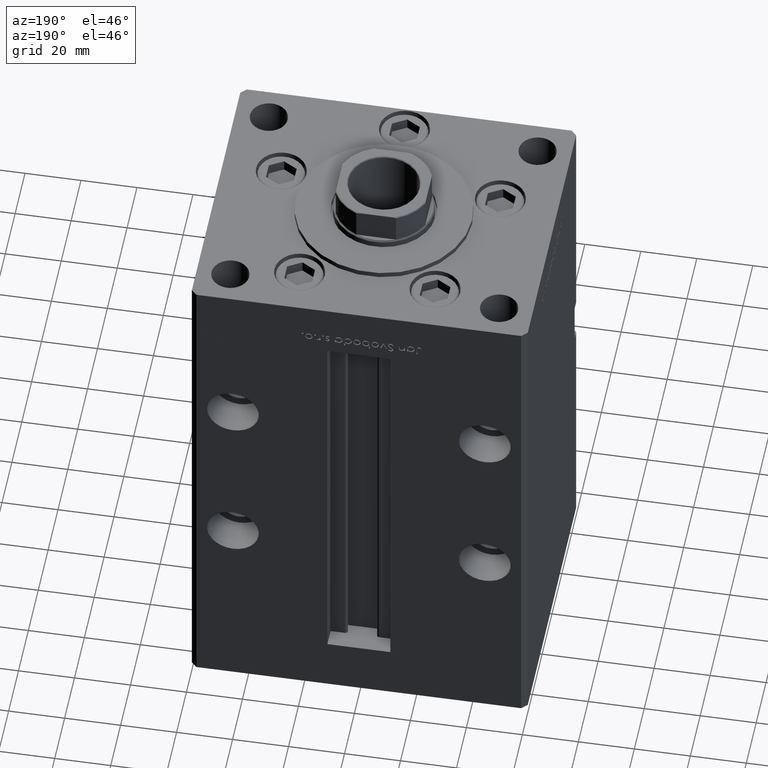
[diagram: clean part render]
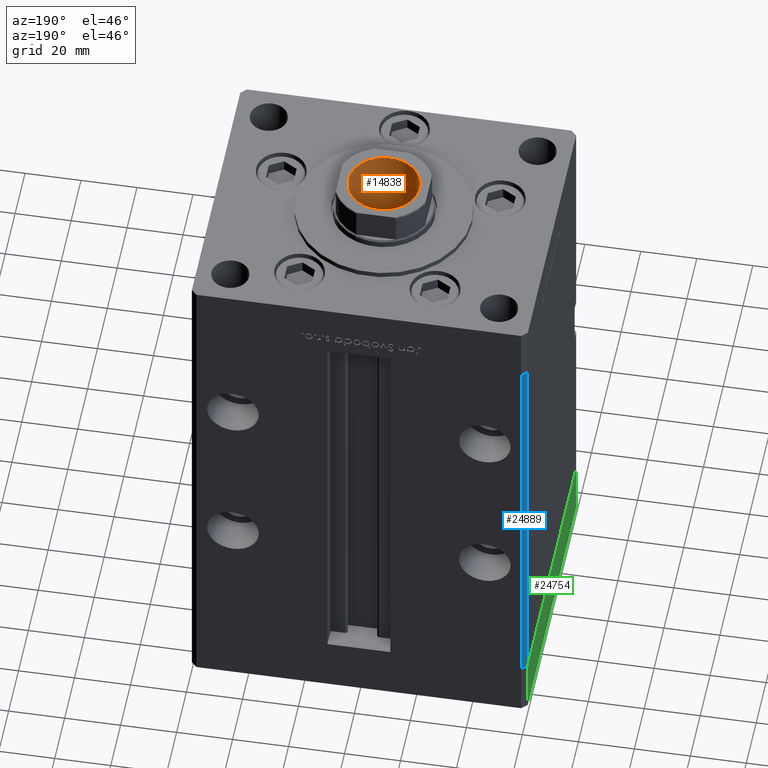
[diagram: same view with three faces highlighted in distinct colors, each labeled with its STEP entity id]
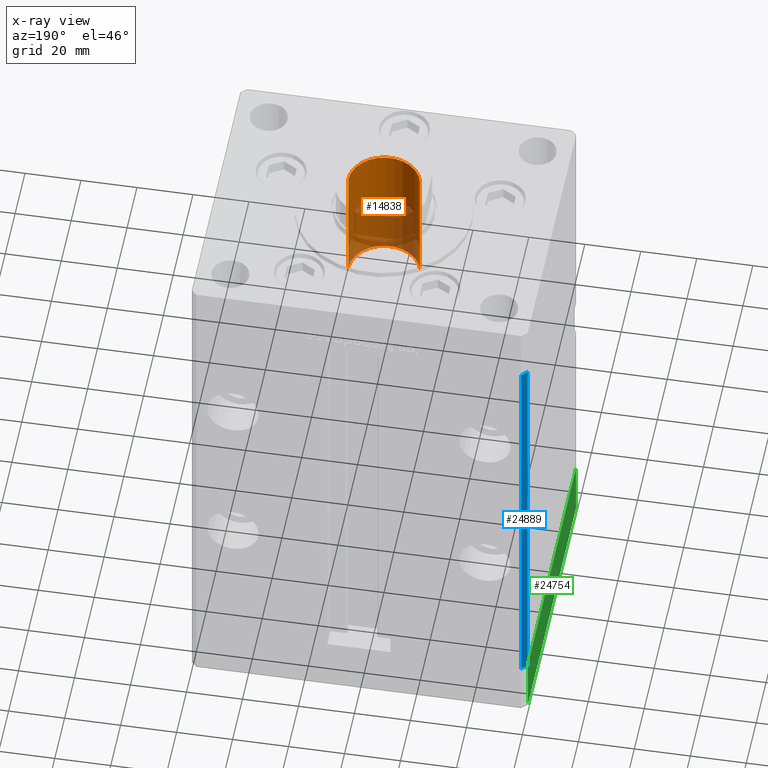
[diagram: x-ray of the same camera — body ghosted, the three highlighted faces saturated]
A machine part, auxiliary view with three faces highlighted in distinct colors.
The next image is the same camera in x-ray (body ghosted, the three faces saturated) — at least one of them is partly hidden behind the body in this view.
Their STEP definitions:

[orange] entity #14838 — the highlighted cylindrical surface (edge-blend (fillet) strip) has radius 12.75 mm, axis along (0, 0, 1).
#782 = AXIS2_PLACEMENT_3D ( 'NONE', #48389, #51892, #52147 ) ;
#4422 = DIRECTION ( 'NONE',  ( 1.000000000000000000, 0.000000000000000000, 0.000000000000000000 ) ) ;
#4569 = VERTEX_POINT ( 'NONE', #45107 ) ;
#4837 = ORIENTED_EDGE ( 'NONE', *, *, #42440, .F. ) ;
#7281 = DIRECTION ( 'NONE',  ( -0.000000000000000000, -0.000000000000000000, 1.000000000000000000 ) ) ;
#10199 = VERTEX_POINT ( 'NONE', #31620 ) ;
#11922 = DIRECTION ( 'NONE',  ( -0.000000000000000000, -0.000000000000000000, 1.000000000000000000 ) ) ;
#13512 = ORIENTED_EDGE ( 'NONE', *, *, #25908, .F. ) ;
#14838 = ADVANCED_FACE ( 'NONE', ( #49723 ), #37383, .F. ) ;
#15068 = LINE ( 'NONE', #20128, #22799 ) ;
#19601 = CARTESIAN_POINT ( 'NONE',  ( 0.000000000000000000, 0.000000000000000000, 124.2500000000000142 ) ) ;
#20083 = CIRCLE ( 'NONE', #26923, 12.74999999999999112 ) ;
#20128 = CARTESIAN_POINT ( 'NONE',  ( -12.74999999999999467, 1.561424668912874519E-15, 169.2500000000000000 ) ) ;
#21688 = ORIENTED_EDGE ( 'NONE', *, *, #36473, .T. ) ;
#22799 = VECTOR ( 'NONE', #32483, 1000.000000000000000 ) ;
#25908 = EDGE_CURVE ( 'NONE', #40233, #4569, #20083, .T. ) ;
#26715 = ORIENTED_EDGE ( 'NONE', *, *, #45851, .T. ) ;
#26923 = AXIS2_PLACEMENT_3D ( 'NONE', #19601, #52325, #32219 ) ;
#31454 = VECTOR ( 'NONE', #7281, 1000.000000000000000 ) ;
#31620 = CARTESIAN_POINT ( 'NONE',  ( -12.74999999999999467, 1.561424668912874519E-15, 168.9499999999999602 ) ) ;
#31680 = CARTESIAN_POINT ( 'NONE',  ( 12.74999999999999467, 0.000000000000000000, 169.2500000000000000 ) ) ;
#32219 = DIRECTION ( 'NONE',  ( 1.000000000000000000, 0.000000000000000000, 0.000000000000000000 ) ) ;
#32483 = DIRECTION ( 'NONE',  ( -0.000000000000000000, -0.000000000000000000, 1.000000000000000000 ) ) ;
#32973 = CARTESIAN_POINT ( 'NONE',  ( 12.74999999999999467, 0.000000000000000000, 168.9499999999999602 ) ) ;
#35864 = CIRCLE ( 'NONE', #782, 12.74999999999999467 ) ;
#36473 = EDGE_CURVE ( 'NONE', #40233, #10199, #15068, .T. ) ;
#37383 = CYLINDRICAL_SURFACE ( 'NONE', #38604, 12.74999999999999467 ) ;
#38604 = AXIS2_PLACEMENT_3D ( 'NONE', #40872, #11922, #4422 ) ;
#40233 = VERTEX_POINT ( 'NONE', #40909 ) ;
#40516 = LINE ( 'NONE', #31680, #31454 ) ;
#40872 = CARTESIAN_POINT ( 'NONE',  ( 0.000000000000000000, 0.000000000000000000, 169.2500000000000000 ) ) ;
#40909 = CARTESIAN_POINT ( 'NONE',  ( -12.74999999999999112, 1.561424668912874125E-15, 124.2500000000000142 ) ) ;
#42440 = EDGE_CURVE ( 'NONE', #4569, #45327, #40516, .T. ) ;
#45107 = CARTESIAN_POINT ( 'NONE',  ( 12.74999999999999112, 0.000000000000000000, 124.2500000000000142 ) ) ;
#45327 = VERTEX_POINT ( 'NONE', #32973 ) ;
#45851 = EDGE_CURVE ( 'NONE', #10199, #45327, #35864, .T. ) ;
#48389 = CARTESIAN_POINT ( 'NONE',  ( 0.000000000000000000, 0.000000000000000000, 168.9499999999999602 ) ) ;
#48940 = EDGE_LOOP ( 'NONE', ( #13512, #21688, #26715, #4837 ) ) ;
#49723 = FACE_OUTER_BOUND ( 'NONE', #48940, .T. ) ;
#51892 = DIRECTION ( 'NONE',  ( 0.000000000000000000, 0.000000000000000000, 1.000000000000000000 ) ) ;
#52147 = DIRECTION ( 'NONE',  ( 1.000000000000000000, 0.000000000000000000, 0.000000000000000000 ) ) ;
#52325 = DIRECTION ( 'NONE',  ( -0.000000000000000000, -0.000000000000000000, 1.000000000000000000 ) ) ;

[blue] entity #24889 — the highlighted planar face has unit normal (0.7071, -0.7071, 0).
#231 = CARTESIAN_POINT ( 'NONE',  ( -57.99999999999999289, 51.00000000000000711, 0.000000000000000000 ) ) ;
#1526 = LINE ( 'NONE', #17865, #45872 ) ;
#7043 = CARTESIAN_POINT ( 'NONE',  ( -57.99999999999999289, 51.00000000000000711, 148.5000000000000000 ) ) ;
#7775 = ORIENTED_EDGE ( 'NONE', *, *, #28316, .F. ) ;
#8091 = AXIS2_PLACEMENT_3D ( 'NONE', #9936, #46128, #46661 ) ;
#9407 = PLANE ( 'NONE',  #8091 ) ;
#9408 = EDGE_CURVE ( 'NONE', #34247, #16557, #9740, .T. ) ;
#9740 = LINE ( 'NONE', #30103, #39413 ) ;
#9936 = CARTESIAN_POINT ( 'NONE',  ( -57.99999999999999289, 51.00000000000000711, 148.5000000000000000 ) ) ;
#12031 = ORIENTED_EDGE ( 'NONE', *, *, #16360, .T. ) ;
#12078 = VECTOR ( 'NONE', #23014, 1000.000000000000114 ) ;
#13686 = FACE_OUTER_BOUND ( 'NONE', #40338, .T. ) ;
#16360 = EDGE_CURVE ( 'NONE', #16557, #34281, #26242, .T. ) ;
#16557 = VERTEX_POINT ( 'NONE', #231 ) ;
#17865 = CARTESIAN_POINT ( 'NONE',  ( -57.99999999999999289, 51.00000000000000711, 148.5000000000000000 ) ) ;
#22169 = LINE ( 'NONE', #23679, #24632 ) ;
#23014 = DIRECTION ( 'NONE',  ( -0.7071067811865500152, -0.7071067811865451302, 0.000000000000000000 ) ) ;
#23679 = CARTESIAN_POINT ( 'NONE',  ( -60.00000000000001421, 49.00000000000000000, 148.5000000000000000 ) ) ;
#24430 = CARTESIAN_POINT ( 'NONE',  ( -60.00000000000001421, 49.00000000000000000, 0.000000000000000000 ) ) ;
#24632 = VECTOR ( 'NONE', #39793, 1000.000000000000000 ) ;
#24889 = ADVANCED_FACE ( 'NONE', ( #13686 ), #9407, .F. ) ;
#26242 = LINE ( 'NONE', #38600, #12078 ) ;
#28316 = EDGE_CURVE ( 'NONE', #34247, #52312, #1526, .T. ) ;
#30103 = CARTESIAN_POINT ( 'NONE',  ( -57.99999999999999289, 51.00000000000000711, 148.5000000000000000 ) ) ;
#33453 = DIRECTION ( 'NONE',  ( -0.7071067811865500152, -0.7071067811865451302, 0.000000000000000000 ) ) ;
#34247 = VERTEX_POINT ( 'NONE', #7043 ) ;
#34281 = VERTEX_POINT ( 'NONE', #24430 ) ;
#38600 = CARTESIAN_POINT ( 'NONE',  ( -57.99999999999999289, 51.00000000000000711, 0.000000000000000000 ) ) ;
#39413 = VECTOR ( 'NONE', #46731, 1000.000000000000000 ) ;
#39793 = DIRECTION ( 'NONE',  ( -0.000000000000000000, -0.000000000000000000, -1.000000000000000000 ) ) ;
#40338 = EDGE_LOOP ( 'NONE', ( #12031, #46180, #7775, #44049 ) ) ;
#42940 = EDGE_CURVE ( 'NONE', #52312, #34281, #22169, .T. ) ;
#44049 = ORIENTED_EDGE ( 'NONE', *, *, #9408, .T. ) ;
#45872 = VECTOR ( 'NONE', #33453, 1000.000000000000114 ) ;
#46128 = DIRECTION ( 'NONE',  ( 0.7071067811865451302, -0.7071067811865499042, 0.000000000000000000 ) ) ;
#46180 = ORIENTED_EDGE ( 'NONE', *, *, #42940, .F. ) ;
#46661 = DIRECTION ( 'NONE',  ( 0.7071067811865499042, 0.7071067811865451302, 0.000000000000000000 ) ) ;
#46731 = DIRECTION ( 'NONE',  ( -0.000000000000000000, -0.000000000000000000, -1.000000000000000000 ) ) ;
#52067 = CARTESIAN_POINT ( 'NONE',  ( -60.00000000000001421, 49.00000000000000000, 148.5000000000000000 ) ) ;
#52312 = VERTEX_POINT ( 'NONE', #52067 ) ;

[green] entity #24754 — the highlighted planar face has unit normal (-1, -0, 0).
#699 = ORIENTED_EDGE ( 'NONE', *, *, #44512, .T. ) ;
#2960 = LINE ( 'NONE', #28381, #11835 ) ;
#3737 = VERTEX_POINT ( 'NONE', #21336 ) ;
#4642 = ORIENTED_EDGE ( 'NONE', *, *, #20505, .F. ) ;
#5947 = VECTOR ( 'NONE', #52839, 1000.000000000000000 ) ;
#7336 = VERTEX_POINT ( 'NONE', #15088 ) ;
#7419 = CARTESIAN_POINT ( 'NONE',  ( 60.00000000000001421, -48.99999999999999289, 0.000000000000000000 ) ) ;
#7496 = DIRECTION ( 'NONE',  ( 0.000000000000000000, 0.000000000000000000, 1.000000000000000000 ) ) ;
#11835 = VECTOR ( 'NONE', #7496, 1000.000000000000000 ) ;
#12542 = VERTEX_POINT ( 'NONE', #14029 ) ;
#12633 = CARTESIAN_POINT ( 'NONE',  ( 60.00000000000001421, -48.99999999999999289, -20.00000000000000000 ) ) ;
#14029 = CARTESIAN_POINT ( 'NONE',  ( 59.99999999999994316, 49.00000000000000000, -20.00000000000000000 ) ) ;
#15088 = CARTESIAN_POINT ( 'NONE',  ( 59.99999999999994316, 49.00000000000000000, 0.000000000000000000 ) ) ;
#15123 = FACE_OUTER_BOUND ( 'NONE', #28205, .T. ) ;
#18677 = ORIENTED_EDGE ( 'NONE', *, *, #40448, .T. ) ;
#19833 = DIRECTION ( 'NONE',  ( 0.000000000000000000, 0.000000000000000000, 1.000000000000000000 ) ) ;
#20048 = VECTOR ( 'NONE', #28300, 1000.000000000000000 ) ;
#20505 = EDGE_CURVE ( 'NONE', #3737, #37514, #52039, .T. ) ;
#21336 = CARTESIAN_POINT ( 'NONE',  ( 60.00000000000001421, -48.99999999999999289, -20.00000000000000000 ) ) ;
#22354 = DIRECTION ( 'NONE',  ( -7.080503983578804809E-16, 1.000000000000000000, 0.000000000000000000 ) ) ;
#24754 = ADVANCED_FACE ( 'NONE', ( #15123 ), #46518, .T. ) ;
#25033 = VECTOR ( 'NONE', #19833, 1000.000000000000000 ) ;
#25416 = EDGE_CURVE ( 'NONE', #37514, #7336, #28832, .T. ) ;
#28205 = EDGE_LOOP ( 'NONE', ( #29647, #4642, #18677, #699 ) ) ;
#28300 = DIRECTION ( 'NONE',  ( -7.080503983578803823E-16, 1.000000000000000000, 0.000000000000000000 ) ) ;
#28381 = CARTESIAN_POINT ( 'NONE',  ( 59.99999999999994316, 49.00000000000000000, -20.00000000000000000 ) ) ;
#28832 = LINE ( 'NONE', #7419, #20048 ) ;
#29647 = ORIENTED_EDGE ( 'NONE', *, *, #25416, .F. ) ;
#35944 = CARTESIAN_POINT ( 'NONE',  ( 60.00000000000001421, -48.99999999999999289, -20.00000000000000000 ) ) ;
#37514 = VERTEX_POINT ( 'NONE', #47211 ) ;
#38739 = CARTESIAN_POINT ( 'NONE',  ( 60.00000000000001421, -48.99999999999999289, -20.00000000000000000 ) ) ;
#40448 = EDGE_CURVE ( 'NONE', #3737, #12542, #45611, .T. ) ;
#44512 = EDGE_CURVE ( 'NONE', #12542, #7336, #2960, .T. ) ;
#45611 = LINE ( 'NONE', #12633, #5947 ) ;
#46518 = PLANE ( 'NONE',  #46634 ) ;
#46634 = AXIS2_PLACEMENT_3D ( 'NONE', #38739, #47577, #22354 ) ;
#47211 = CARTESIAN_POINT ( 'NONE',  ( 60.00000000000001421, -48.99999999999999289, 0.000000000000000000 ) ) ;
#47577 = DIRECTION ( 'NONE',  ( 1.000000000000000000, 7.080503983578804809E-16, -0.000000000000000000 ) ) ;
#52039 = LINE ( 'NONE', #35944, #25033 ) ;
#52839 = DIRECTION ( 'NONE',  ( -7.080503983578803823E-16, 1.000000000000000000, 0.000000000000000000 ) ) ;